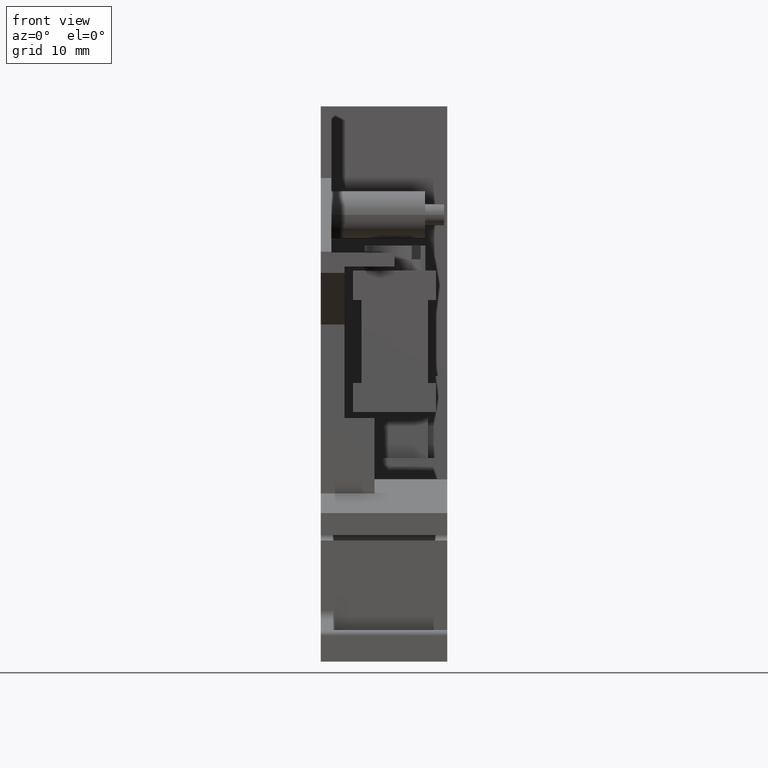
[diagram: clean part render]
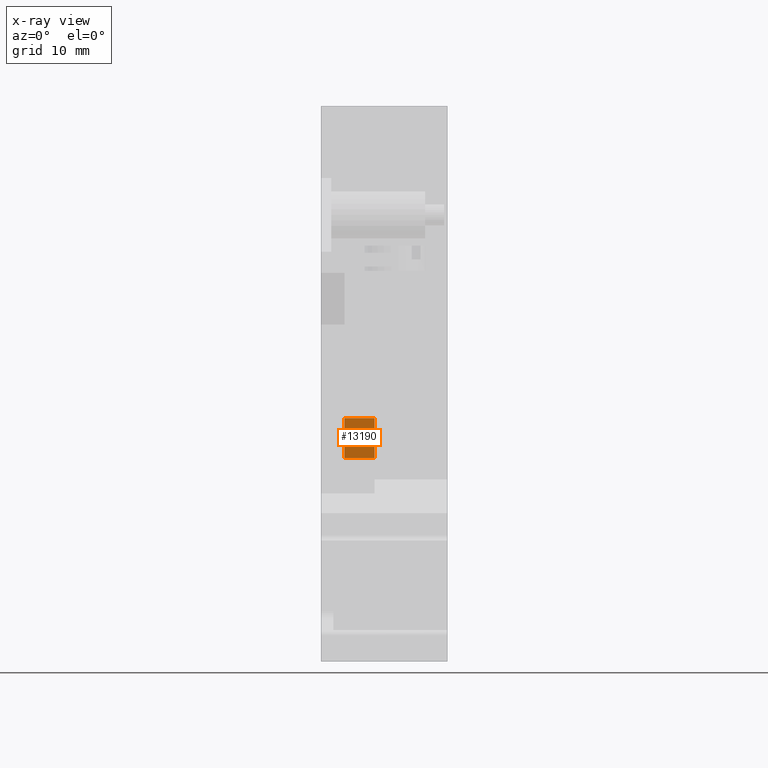
[diagram: x-ray — body ghosted, one internal face saturated and labeled with its STEP entity id]
A machine part, front view, then the same camera in x-ray: the body is ghosted and one INTERNAL B-rep face — a face not visible from any outside direction — is saturated and labeled: STEP entity #13190.
In plain terms, the highlighted planar face has unit normal (0, -1, 0).
Its self-contained STEP definition (entity closure, byte-faithful):
#12600=CARTESIAN_POINT('',(-154.405125039702,133.078997429054,-9.75));
#12610=VERTEX_POINT('',#12600);
#12640=CARTESIAN_POINT('',(-154.405125039702,148.768305429054,
-9.74999999999999));
#12650=DIRECTION('',(0.,1.,3.0626842058625E-16));
#12660=VECTOR('',#12650,1.);
#12670=LINE('',#12640,#12660);
#12680=CARTESIAN_POINT('',(-154.405125039702,136.878997429054,-9.75));
#12690=VERTEX_POINT('',#12680);
#12700=EDGE_CURVE('',#12610,#12690,#12670,.T.);
#12890=CARTESIAN_POINT('',(-154.405125039702,136.878997429054,0.));
#12900=DIRECTION('',(-1.,0.,0.));
#12910=DIRECTION('',(0.,1.,0.));
#12920=AXIS2_PLACEMENT_3D('',#12890,#12900,#12910);
#12930=PLANE('',#12920);
#12940=CARTESIAN_POINT('',(-154.405125039702,136.878997429054,0.));
#12950=DIRECTION('',(0.,0.,-1.));
#12960=VECTOR('',#12950,1.);
#12970=LINE('',#12940,#12960);
#12980=CARTESIAN_POINT('',(-154.405125039702,136.878997429054,-6.9));
#12990=VERTEX_POINT('',#12980);
#13000=EDGE_CURVE('',#12990,#12690,#12970,.T.);
#13010=ORIENTED_EDGE('',*,*,#13000,.F.);
#13020=ORIENTED_EDGE('',*,*,#12700,.T.);
#13030=CARTESIAN_POINT('',(-154.405125039702,133.078997429054,0.));
#13040=DIRECTION('',(0.,0.,1.));
#13050=VECTOR('',#13040,1.);
#13060=LINE('',#13030,#13050);
#13070=CARTESIAN_POINT('',(-154.405125039702,133.078997429054,-6.9));
#13080=VERTEX_POINT('',#13070);
#13090=EDGE_CURVE('',#12610,#13080,#13060,.T.);
#13100=ORIENTED_EDGE('',*,*,#13090,.F.);
#13110=CARTESIAN_POINT('',(-154.405125039702,0.,-6.9));
#13120=DIRECTION('',(0.,1.,0.));
#13130=VECTOR('',#13120,1.);
#13140=LINE('',#13110,#13130);
#13150=EDGE_CURVE('',#13080,#12990,#13140,.T.);
#13160=ORIENTED_EDGE('',*,*,#13150,.F.);
#13170=EDGE_LOOP('',(#13160,#13100,#13020,#13010));
#13180=FACE_OUTER_BOUND('',#13170,.T.);
#13190=ADVANCED_FACE('',(#13180),#12930,.F.);